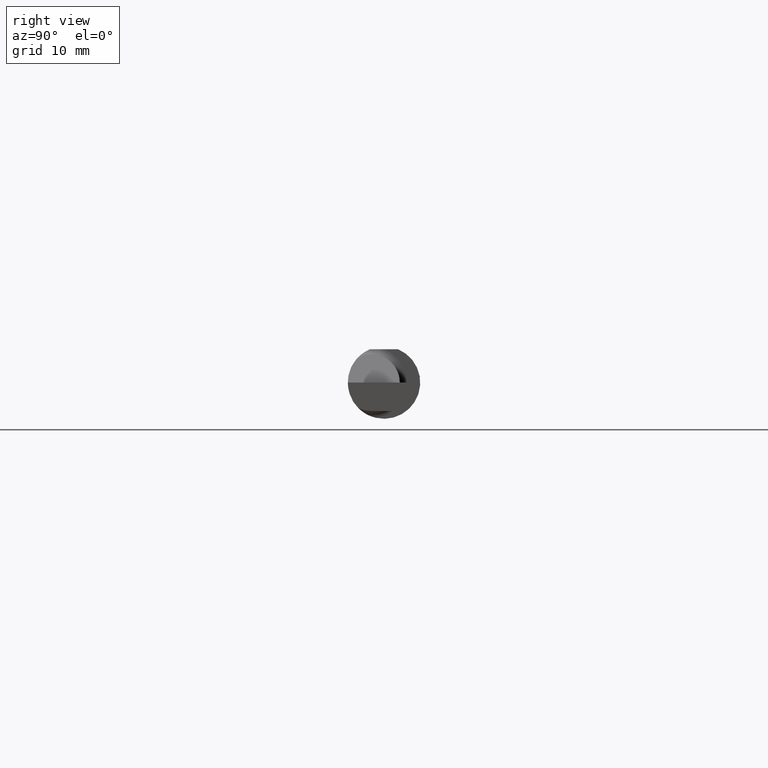
[diagram: clean part render]
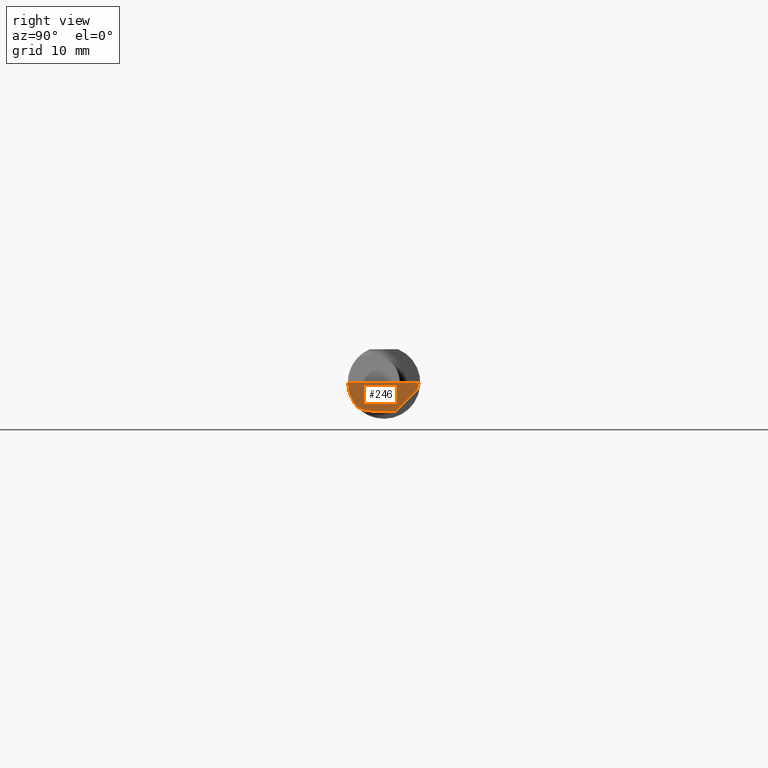
[diagram: same view with one face highlighted and labeled with its STEP entity id]
A machine part, right view. The second image highlights one B-rep face of the part: STEP entity #246.
In plain terms, the highlighted planar face has unit normal (-0.9995, 0.0174, 0.0262).
Its self-contained STEP definition (entity closure, byte-faithful):
#29 = ORIENTED_EDGE ( 'NONE', *, *, #680, .F. ) ;
#31 = EDGE_CURVE ( 'NONE', #719, #184, #723, .T. ) ;
#46 = ORIENTED_EDGE ( 'NONE', *, *, #80, .F. ) ;
#55 = CARTESIAN_POINT ( 'NONE',  ( 2.499132853025171297, 0.1117231085775382687, -0.02616302870350971019 ) ) ;
#80 = EDGE_CURVE ( 'NONE', #574, #687, #361, .T. ) ;
#101 = DIRECTION ( 'NONE',  ( -0.03084274406794521375, -0.7067703747110382073, -0.7067703747110356538 ) ) ;
#109 = CARTESIAN_POINT ( 'NONE',  ( 2.497382703856816377, 0.1221956850741156286, -0.09996573249755572044 ) ) ;
#113 = CARTESIAN_POINT ( 'NONE',  ( 2.494536841675280670, -0.04385000000000003478, -0.09799999999999998990 ) ) ;
#123 =( BOUNDED_CURVE ( )  B_SPLINE_CURVE ( 3, ( #480, #164, #290, #347 ),
 .UNSPECIFIED., .F., .T. ) 
 B_SPLINE_CURVE_WITH_KNOTS ( ( 4, 4 ),
 ( 0.09562308769844128642, 0.5877155292609013149 ),
 .UNSPECIFIED. ) 
 CURVE ( )  GEOMETRIC_REPRESENTATION_ITEM ( )  RATIONAL_B_SPLINE_CURVE ( ( 1.000000000000000000, 0.9799220177372778284, 0.9799220177372778284, 1.000000000000000000 ) ) 
 REPRESENTATION_ITEM ( '' )  );
#142 = CARTESIAN_POINT ( 'NONE',  ( 2.494033449660867152, -0.09015216647662482874, -0.08637192471845768493 ) ) ;
#143 = VECTOR ( 'NONE', #101, 39.37007874015748854 ) ;
#147 = DIRECTION ( 'NONE',  ( -0.01744642479411464067, -0.9998477995484629233, 2.816882764651548232E-16 ) ) ;
#164 = CARTESIAN_POINT ( 'NONE',  ( 2.494082244196984099, -0.07583965973232818791, -0.09404455760388209795 ) ) ;
#184 = VERTEX_POINT ( 'NONE', #113 ) ;
#196 = CARTESIAN_POINT ( 'NONE',  ( 2.494256244271084721, -0.1126860773865890480, -0.06285177167860772629 ) ) ;
#204 = CARTESIAN_POINT ( 'NONE',  ( 2.494835769263151537, -0.1248351010429638308, -0.03262966116142157480 ) ) ;
#205 = AXIS2_PLACEMENT_3D ( 'NONE', #109, #598, #778 ) ;
#215 = CARTESIAN_POINT ( 'NONE',  ( 2.495690077103728921, -0.1248499999950965084, 1.733801157256528502E-17 ) ) ;
#216 = FACE_OUTER_BOUND ( 'NONE', #422, .T. ) ;
#224 = PLANE ( 'NONE',  #205 ) ;
#231 = VECTOR ( 'NONE', #147, 39.37007874015748854 ) ;
#242 = CARTESIAN_POINT ( 'NONE',  ( 2.499227245409318954, 0.1138861372810479888, -0.02400000000000000050 ) ) ;
#246 = ADVANCED_FACE ( 'NONE', ( #216 ), #224, .F. ) ;
#268 = EDGE_CURVE ( 'NONE', #785, #719, #477, .T. ) ;
#281 = EDGE_CURVE ( 'NONE', #574, #184, #123, .T. ) ;
#290 = CARTESIAN_POINT ( 'NONE',  ( 2.494253479596434175, -0.06008937020638530080, -0.09800000000000001765 ) ) ;
#314 = DIRECTION ( 'NONE',  ( 0.01744642479411464761, 0.9998477995484629233, -2.135106780035675284E-18 ) ) ;
#334 = VERTEX_POINT ( 'NONE', #787 ) ;
#338 = ORIENTED_EDGE ( 'NONE', *, *, #650, .F. ) ;
#347 = CARTESIAN_POINT ( 'NONE',  ( 2.494536841675280670, -0.04385000000000003478, -0.09799999999999998990 ) ) ;
#359 = CARTESIAN_POINT ( 'NONE',  ( 2.494380489674781209, -0.1999019447116721915, 6.881915332554903690E-19 ) ) ;
#361 =( BOUNDED_CURVE ( )  B_SPLINE_CURVE ( 3, ( #142, #196, #204, #762 ),
 .UNSPECIFIED., .F., .T. ) 
 B_SPLINE_CURVE_WITH_KNOTS ( ( 4, 4 ),
 ( 0.2190942387645155864, 0.9826237902196512941 ),
 .UNSPECIFIED. ) 
 CURVE ( )  GEOMETRIC_REPRESENTATION_ITEM ( )  RATIONAL_B_SPLINE_CURVE ( ( 1.000000000000000000, 0.9520057322288819623, 0.9520057322288819623, 1.000000000000000000 ) ) 
 REPRESENTATION_ITEM ( '' )  );
#382 = CARTESIAN_POINT ( 'NONE',  ( 2.496652745773396020, 0.07741163850316090667, -0.09800000000000001765 ) ) ;
#404 = VECTOR ( 'NONE', #593, 39.37007874015748854 ) ;
#422 = EDGE_LOOP ( 'NONE', ( #531, #553, #442, #763, #29, #338, #46 ) ) ;
#440 = VECTOR ( 'NONE', #314, 39.37007874015748854 ) ;
#442 = ORIENTED_EDGE ( 'NONE', *, *, #268, .F. ) ;
#458 = DIRECTION ( 'NONE',  ( -0.03042981077198583101, -0.3254173858243484818, -0.9450807116958995779 ) ) ;
#477 = LINE ( 'NONE', #55, #143 ) ;
#479 = CARTESIAN_POINT ( 'NONE',  ( 2.494033449660867152, -0.09015216647662482874, -0.08637192471845768493 ) ) ;
#480 = CARTESIAN_POINT ( 'NONE',  ( 2.494033449660867152, -0.09015216647662482874, -0.08637192471845768493 ) ) ;
#524 = EDGE_CURVE ( 'NONE', #334, #785, #745, .T. ) ;
#531 = ORIENTED_EDGE ( 'NONE', *, *, #281, .T. ) ;
#547 = CARTESIAN_POINT ( 'NONE',  ( 2.493072779947982820, -0.1248043149033065402, -0.09996577117162359916 ) ) ;
#553 = ORIENTED_EDGE ( 'NONE', *, *, #31, .F. ) ;
#574 = VERTEX_POINT ( 'NONE', #479 ) ;
#593 = DIRECTION ( 'NONE',  ( 0.02617296143184116158, -0.0004568507411563390110, 0.9996573249755575929 ) ) ;
#598 = DIRECTION ( 'NONE',  ( -0.9995051766793262571, 0.01744044634007211117, 0.02617694830739122208 ) ) ;
#650 = EDGE_CURVE ( 'NONE', #687, #679, #656, .T. ) ;
#656 = LINE ( 'NONE', #547, #404 ) ;
#668 = VECTOR ( 'NONE', #458, 39.37007874015748854 ) ;
#671 = CARTESIAN_POINT ( 'NONE',  ( 2.495997960279815686, 0.03988613728104775658, -0.09799999999999996214 ) ) ;
#679 = VERTEX_POINT ( 'NONE', #215 ) ;
#680 = EDGE_CURVE ( 'NONE', #679, #334, #707, .T. ) ;
#687 = VERTEX_POINT ( 'NONE', #726 ) ;
#707 = LINE ( 'NONE', #359, #440 ) ;
#719 = VERTEX_POINT ( 'NONE', #671 ) ;
#723 = LINE ( 'NONE', #382, #231 ) ;
#726 = CARTESIAN_POINT ( 'NONE',  ( 2.495688583004118666, -0.1248499869621840785, -5.705736120969982501E-05 ) ) ;
#745 = LINE ( 'NONE', #754, #668 ) ;
#754 = CARTESIAN_POINT ( 'NONE',  ( 2.499907402661638578, 0.1211597610527450630, -0.002875862722116008779 ) ) ;
#762 = CARTESIAN_POINT ( 'NONE',  ( 2.495688583004118666, -0.1248499869621840785, -5.705736120969982501E-05 ) ) ;
#763 = ORIENTED_EDGE ( 'NONE', *, *, #524, .F. ) ;
#778 = DIRECTION ( 'NONE',  ( 0.02618093032612054533, 0.000000000000000000, 0.9996572206948034500 ) ) ;
#785 = VERTEX_POINT ( 'NONE', #242 ) ;
#787 = CARTESIAN_POINT ( 'NONE',  ( 2.500000000000000444, 0.1221499999999999808, 1.947508823608312588E-17 ) ) ;